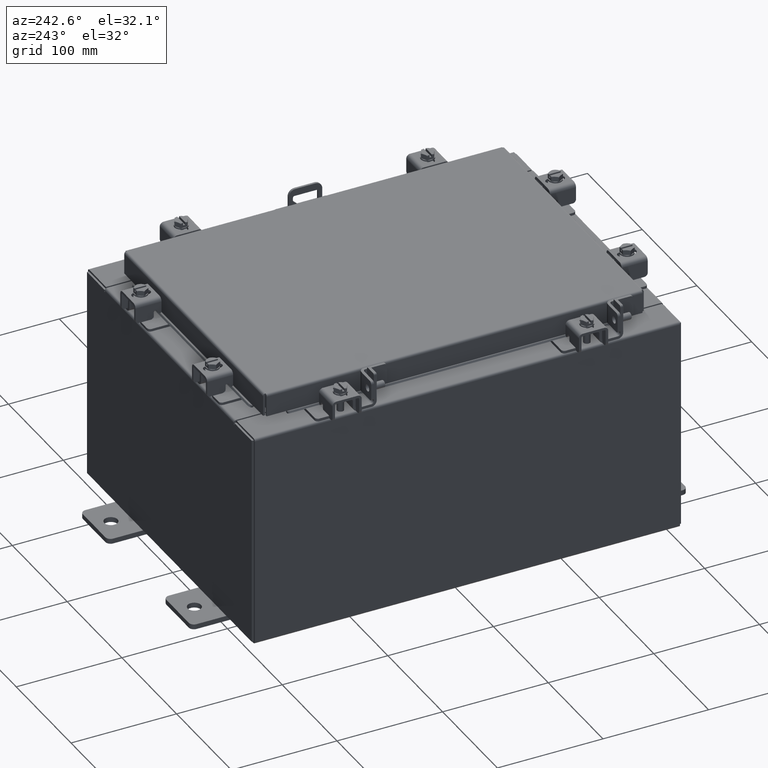
[diagram: clean part render]
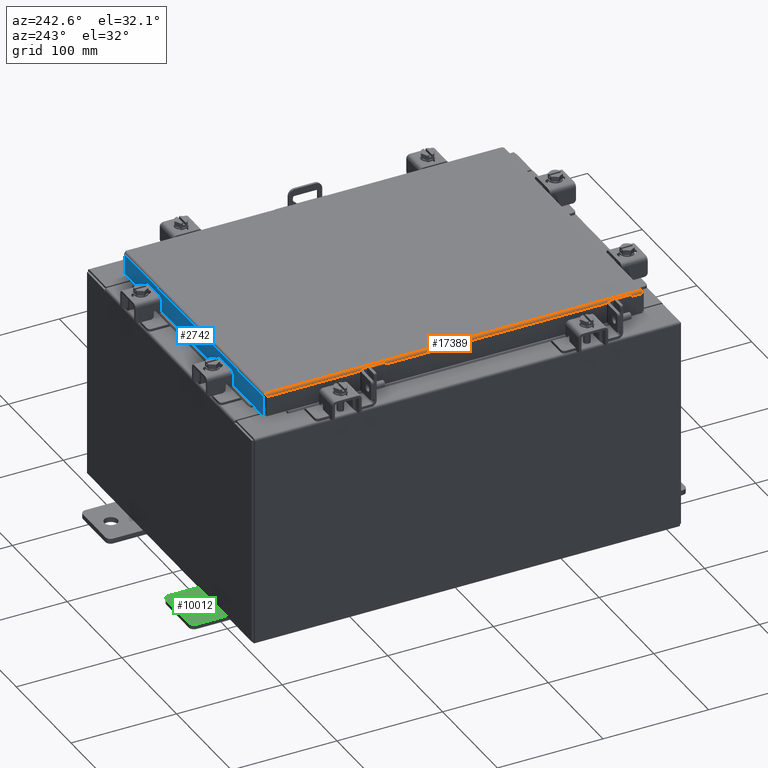
[diagram: same view with three faces highlighted in distinct colors, each labeled with its STEP entity id]
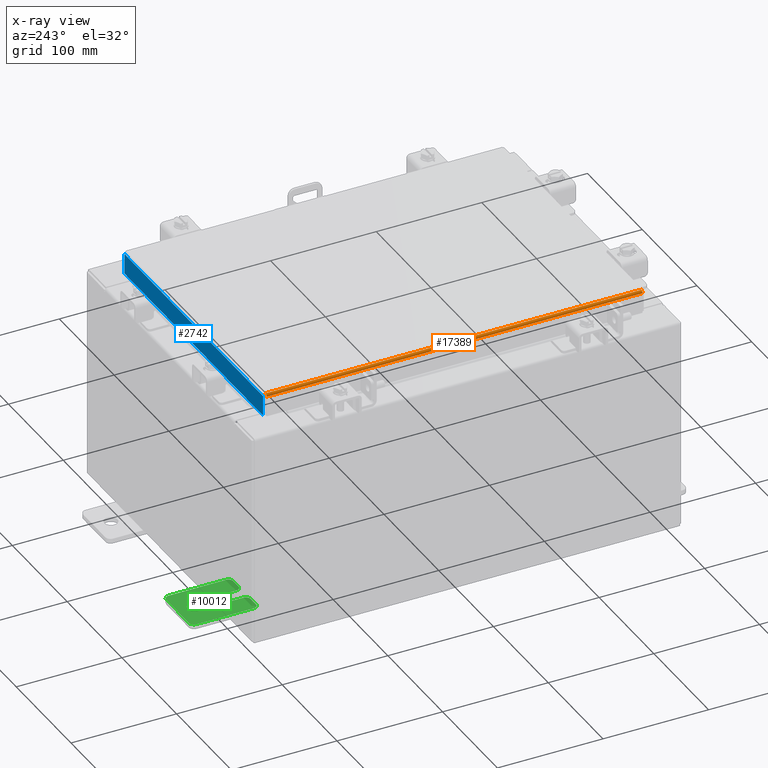
[diagram: x-ray of the same camera — body ghosted, the three highlighted faces saturated]
A machine part, auxiliary view with three faces highlighted in distinct colors.
The next image is the same camera in x-ray (body ghosted, the three faces saturated) — at least one of them is partly hidden behind the body in this view.
Their STEP definitions:

[orange] entity #17389 — the highlighted cylindrical surface (edge-blend (fillet) strip) has radius 2.2276 mm, axis along (0, 1, 0).
#159 = ORIENTED_EDGE ( 'NONE', *, *, #5849, .F. ) ;
#220 = VECTOR ( 'NONE', #12813, 39.37007874015748100 ) ;
#358 = CYLINDRICAL_SURFACE ( 'NONE', #10582, 0.08770000000000026400 ) ;
#823 = ORIENTED_EDGE ( 'NONE', *, *, #9444, .F. ) ;
#946 = EDGE_LOOP ( 'NONE', ( #2431, #823, #21982, #159 ) ) ;
#1432 = DIRECTION ( 'NONE',  ( -0.0000000000000000000, 1.000000000000000000, -0.0000000000000000000 ) ) ;
#1436 = CARTESIAN_POINT ( 'NONE',  ( -5.001779903154992500, -7.006204822031357100, -2.037881236484656600E-016 ) ) ;
#1495 = CARTESIAN_POINT ( 'NONE',  ( -5.013255289458311600, 7.006109644062711100, -0.002282596256188923000 ) ) ;
#2314 = CARTESIAN_POINT ( 'NONE',  ( -4.990300000000000400, -7.006300000000000400, -2.048885995248197400E-016 ) ) ;
#2431 = ORIENTED_EDGE ( 'NONE', *, *, #13356, .F. ) ;
#2940 = CARTESIAN_POINT ( 'NONE',  ( -4.990300000000000400, 7.006300000000000400, -2.048885995248197400E-016 ) ) ;
#3167 = CARTESIAN_POINT ( 'NONE',  ( -4.990300000000000400, 7.006300000000000400, -0.08770000000000030500 ) ) ;
#3177 = CARTESIAN_POINT ( 'NONE',  ( -5.034467384578528400, -7.005919288125420900, -0.01106893374133176100 ) ) ;
#3232 = CARTESIAN_POINT ( 'NONE',  ( -4.990300000000000400, 7.006300000000000400, -2.048885995248197400E-016 ) ) ;
#3460 = VECTOR ( 'NONE', #6015, 39.37007874015748100 ) ;
#4003 = LINE ( 'NONE', #14611, #3460 ) ;
#4632 = VERTEX_POINT ( 'NONE', #5739 ) ;
#4906 = CARTESIAN_POINT ( 'NONE',  ( -5.060430782078324100, -7.005633754219490000, -0.03380425265820009900 ) ) ;
#5456 = FACE_OUTER_BOUND ( 'NONE', #946, .T. ) ;
#5739 = CARTESIAN_POINT ( 'NONE',  ( -5.078000000000001200, -7.005157864376269700, -0.08770000000000007000 ) ) ;
#5841 = B_SPLINE_CURVE_WITH_KNOTS ( 'NONE', 3,
 ( #21831, #16811, #8336, #20178, #10046, #21910, #11750, #1495, #13494, #3232 ),
 .UNSPECIFIED., .F., .F.,
 ( 4, 2, 2, 2, 4 ),
 ( 0.0000000000000000000, 0.2500000000000000000, 0.5000000000000000000, 0.7500000000000000000, 1.000000000000000000 ),
 .UNSPECIFIED. ) ;
#5849 = EDGE_CURVE ( 'NONE', #10294, #4632, #11715, .T. ) ;
#6015 = DIRECTION ( 'NONE',  ( 0.0000000000000000000, -1.000000000000000000, 0.0000000000000000000 ) ) ;
#6623 = CARTESIAN_POINT ( 'NONE',  ( -5.075717403743813500, -7.005348220313559100, -0.06474471054169121700 ) ) ;
#8336 = CARTESIAN_POINT ( 'NONE',  ( -5.075717403743813500, 7.005348220313559100, -0.06474471054169121700 ) ) ;
#8348 = CARTESIAN_POINT ( 'NONE',  ( -5.078000000000001200, -7.005157864376269700, -0.08770000000000007000 ) ) ;
#9444 = EDGE_CURVE ( 'NONE', #10232, #10562, #5841, .T. ) ;
#10046 = CARTESIAN_POINT ( 'NONE',  ( -5.060430782078321400, 7.005633754219491700, -0.03380425265820009200 ) ) ;
#10232 = VERTEX_POINT ( 'NONE', #17624 ) ;
#10294 = VERTEX_POINT ( 'NONE', #2314 ) ;
#10393 = EDGE_CURVE ( 'NONE', #10232, #4632, #17842, .T. ) ;
#10562 = VERTEX_POINT ( 'NONE', #2940 ) ;
#10582 = AXIS2_PLACEMENT_3D ( 'NONE', #3167, #1432, #20182 ) ;
#11089 = CARTESIAN_POINT ( 'NONE',  ( -5.078000000000001200, -7.094000000000000300, -0.08770000000000007000 ) ) ;
#11715 = B_SPLINE_CURVE_WITH_KNOTS ( 'NONE', 3,
 ( #21846, #1436, #13426, #3177, #15154, #4906, #16827, #6623, #18524, #8348 ),
 .UNSPECIFIED., .F., .F.,
 ( 4, 2, 2, 2, 4 ),
 ( 0.0000000000000000000, 0.2500000000000000000, 0.5000000000000000000, 0.7500000000000000000, 1.000000000000000000 ),
 .UNSPECIFIED. ) ;
#11750 = CARTESIAN_POINT ( 'NONE',  ( -5.034467384578530200, 7.005919288125422600, -0.01106893374133176100 ) ) ;
#12813 = DIRECTION ( 'NONE',  ( 3.527974528565840600E-031, -1.000000000000000000, -9.616438660265784900E-046 ) ) ;
#13356 = EDGE_CURVE ( 'NONE', #10562, #10294, #4003, .T. ) ;
#13426 = CARTESIAN_POINT ( 'NONE',  ( -5.013255289458309800, -7.006109644062711100, -0.002282596256188923400 ) ) ;
#13494 = CARTESIAN_POINT ( 'NONE',  ( -5.001779903154994300, 7.006204822031357100, -2.038214714022946300E-016 ) ) ;
#14611 = CARTESIAN_POINT ( 'NONE',  ( -4.990300000000000400, 7.006300000000000400, -2.048885995248197400E-016 ) ) ;
#15154 = CARTESIAN_POINT ( 'NONE',  ( -5.044195747341800200, -7.005824110156779300, -0.01756921792167976500 ) ) ;
#16811 = CARTESIAN_POINT ( 'NONE',  ( -5.078000000000001200, 7.005253042344914900, -0.07622009684500735700 ) ) ;
#16827 = CARTESIAN_POINT ( 'NONE',  ( -5.066931066258668200, -7.005538576250847500, -0.04353261542147223600 ) ) ;
#17389 = ADVANCED_FACE ( 'NONE', ( #5456 ), #358, .T. ) ;
#17624 = CARTESIAN_POINT ( 'NONE',  ( -5.078000000000001200, 7.005157864376269700, -0.08770000000000007000 ) ) ;
#17842 = LINE ( 'NONE', #11089, #220 ) ;
#18524 = CARTESIAN_POINT ( 'NONE',  ( -5.078000000000001200, -7.005253042344914900, -0.07622009684500738500 ) ) ;
#20178 = CARTESIAN_POINT ( 'NONE',  ( -5.066931066258668200, 7.005538576250844900, -0.04353261542147222900 ) ) ;
#20182 = DIRECTION ( 'NONE',  ( -1.000000000000000000, 0.0000000000000000000, 2.725618009642215600E-015 ) ) ;
#21831 = CARTESIAN_POINT ( 'NONE',  ( -5.078000000000001200, 7.005157864376269700, -0.08770000000000007000 ) ) ;
#21846 = CARTESIAN_POINT ( 'NONE',  ( -4.990300000000000400, -7.006300000000000400, -2.048885995248197400E-016 ) ) ;
#21910 = CARTESIAN_POINT ( 'NONE',  ( -5.044195747341799300, 7.005824110156780200, -0.01756921792167976500 ) ) ;
#21982 = ORIENTED_EDGE ( 'NONE', *, *, #10393, .T. ) ;

[blue] entity #2742 — the highlighted planar face has unit normal (0, -1, -0).
#227 = CARTESIAN_POINT ( 'NONE',  ( 4.989157864376268000, 7.094000000000002100, -0.8499999999999996400 ) ) ;
#535 = CARTESIAN_POINT ( 'NONE',  ( -4.989157864376269700, 7.094000000000002100, -0.8500000000000008700 ) ) ;
#680 = VERTEX_POINT ( 'NONE', #4479 ) ;
#974 = EDGE_CURVE ( 'NONE', #9045, #19669, #5782, .T. ) ;
#1135 = FACE_OUTER_BOUND ( 'NONE', #18288, .T. ) ;
#2113 = CARTESIAN_POINT ( 'NONE',  ( -5.078000000000001200, 7.094000000000000300, -0.08770000000000007000 ) ) ;
#2742 = ADVANCED_FACE ( 'NONE', ( #1135 ), #20853, .F. ) ;
#2798 = CARTESIAN_POINT ( 'NONE',  ( -4.239157864376270600, 7.094000000000000300, -0.8500000000000014200 ) ) ;
#3099 = VERTEX_POINT ( 'NONE', #13124 ) ;
#3255 = ORIENTED_EDGE ( 'NONE', *, *, #16721, .F. ) ;
#3593 = LINE ( 'NONE', #16775, #7652 ) ;
#3872 = DIRECTION ( 'NONE',  ( -1.000000000000000000, -3.412110487939138600E-031, -9.300620212429610200E-046 ) ) ;
#4479 = CARTESIAN_POINT ( 'NONE',  ( -4.989157864376269700, 7.094000000000000300, -0.08770000000000007000 ) ) ;
#4514 = DIRECTION ( 'NONE',  ( 1.000000000000000000, -0.0000000000000000000, -0.0000000000000000000 ) ) ;
#5782 = LINE ( 'NONE', #18089, #14342 ) ;
#6449 = CARTESIAN_POINT ( 'NONE',  ( -4.989157864376269700, 7.094000000000000300, -0.07469999999999978000 ) ) ;
#6457 = ORIENTED_EDGE ( 'NONE', *, *, #18560, .F. ) ;
#6600 = LINE ( 'NONE', #2113, #15168 ) ;
#7652 = VECTOR ( 'NONE', #20148, 39.37007874015748100 ) ;
#7923 = DIRECTION ( 'NONE',  ( 0.0000000000000000000, 2.818880942772355800E-015, -1.000000000000000000 ) ) ;
#8176 = DIRECTION ( 'NONE',  ( -0.0000000000000000000, 2.818880942772355800E-015, -1.000000000000000000 ) ) ;
#8593 = CARTESIAN_POINT ( 'NONE',  ( 4.989157864376268000, 7.094000000000000300, 2.025795506403867700E-014 ) ) ;
#8605 = CARTESIAN_POINT ( 'NONE',  ( -4.239157864376270600, 7.094000000000000300, -0.8500000000000014200 ) ) ;
#8912 = CARTESIAN_POINT ( 'NONE',  ( 4.239157864376268000, 7.094000000000000300, -0.8500000000000014200 ) ) ;
#9045 = VERTEX_POINT ( 'NONE', #535 ) ;
#9289 = VECTOR ( 'NONE', #8176, 39.37007874015748100 ) ;
#10953 = ORIENTED_EDGE ( 'NONE', *, *, #11592, .F. ) ;
#11592 = EDGE_CURVE ( 'NONE', #3099, #680, #6600, .T. ) ;
#11956 = DIRECTION ( 'NONE',  ( 0.0000000000000000000, 2.818880942772355800E-015, -1.000000000000000000 ) ) ;
#12724 = VECTOR ( 'NONE', #11956, 39.37007874015748100 ) ;
#12909 = VECTOR ( 'NONE', #4514, 39.37007874015748100 ) ;
#13124 = CARTESIAN_POINT ( 'NONE',  ( 4.989157864376268000, 7.094000000000000300, -0.08770000000000007000 ) ) ;
#13194 = VERTEX_POINT ( 'NONE', #8912 ) ;
#13407 = ORIENTED_EDGE ( 'NONE', *, *, #974, .F. ) ;
#13842 = LINE ( 'NONE', #6449, #9289 ) ;
#14342 = VECTOR ( 'NONE', #20320, 39.37007874015748100 ) ;
#15052 = EDGE_CURVE ( 'NONE', #680, #9045, #13842, .T. ) ;
#15168 = VECTOR ( 'NONE', #3872, 39.37007874015748100 ) ;
#16180 = EDGE_CURVE ( 'NONE', #3099, #21648, #21185, .T. ) ;
#16721 = EDGE_CURVE ( 'NONE', #13194, #21648, #3593, .T. ) ;
#16775 = CARTESIAN_POINT ( 'NONE',  ( -5.078000000000001200, 7.094000000000002100, -0.8500000000000008700 ) ) ;
#16880 = LINE ( 'NONE', #2798, #12909 ) ;
#18050 = ORIENTED_EDGE ( 'NONE', *, *, #16180, .T. ) ;
#18089 = CARTESIAN_POINT ( 'NONE',  ( -5.078000000000001200, 7.094000000000002100, -0.8500000000000008700 ) ) ;
#18288 = EDGE_LOOP ( 'NONE', ( #10953, #18050, #3255, #6457, #13407, #18572 ) ) ;
#18560 = EDGE_CURVE ( 'NONE', #19669, #13194, #16880, .T. ) ;
#18572 = ORIENTED_EDGE ( 'NONE', *, *, #15052, .F. ) ;
#19669 = VERTEX_POINT ( 'NONE', #8605 ) ;
#20148 = DIRECTION ( 'NONE',  ( 1.000000000000000000, 4.379057701015054300E-047, 1.210448599004448700E-016 ) ) ;
#20320 = DIRECTION ( 'NONE',  ( 1.000000000000000000, 4.379057701015054300E-047, 1.210448599004448700E-016 ) ) ;
#20474 = AXIS2_PLACEMENT_3D ( 'NONE', #21418, #21837, #7923 ) ;
#20853 = PLANE ( 'NONE',  #20474 ) ;
#21185 = LINE ( 'NONE', #8593, #12724 ) ;
#21418 = CARTESIAN_POINT ( 'NONE',  ( -2.420551180144024700E-030, 7.094000000000000300, 2.025795506403867700E-014 ) ) ;
#21648 = VERTEX_POINT ( 'NONE', #227 ) ;
#21837 = DIRECTION ( 'NONE',  ( 3.412110487939137700E-031, -1.000000000000000000, -2.818880942772355800E-015 ) ) ;

[green] entity #10012 — the highlighted planar face has unit normal (0, 0, 1).
#96 = CARTESIAN_POINT ( 'NONE',  ( 0.0000000000000000000, 1.249999999999994700, -0.8100000000000092700 ) ) ;
#211 = LINE ( 'NONE', #14315, #8773 ) ;
#338 = CARTESIAN_POINT ( 'NONE',  ( 4.780733988912460100E-016, -0.6249999999999993300, 5.858939755051854500E-017 ) ) ;
#424 = VECTOR ( 'NONE', #14277, 39.37007874015748100 ) ;
#898 = AXIS2_PLACEMENT_3D ( 'NONE', #20057, #9910, #21784 ) ;
#914 = LINE ( 'NONE', #7016, #8948 ) ;
#1023 = AXIS2_PLACEMENT_3D ( 'NONE', #19361, #9196, #21054 ) ;
#1207 = ORIENTED_EDGE ( 'NONE', *, *, #12539, .F. ) ;
#1313 = CARTESIAN_POINT ( 'NONE',  ( 0.0000000000000000000, 0.0000000000000000000, 0.0000000000000000000 ) ) ;
#1579 = DIRECTION ( 'NONE',  ( 0.0000000000000000000, 0.0000000000000000000, -1.000000000000000000 ) ) ;
#1916 = CARTESIAN_POINT ( 'NONE',  ( 0.0000000000000000000, -1.060000000000001600, 0.8099999999999978300 ) ) ;
#2024 = DIRECTION ( 'NONE',  ( -6.523827964459551700E-016, -1.000000000000000000, 0.0000000000000000000 ) ) ;
#2482 = CIRCLE ( 'NONE', #1023, 0.2499999999999999200 ) ;
#2535 = DIRECTION ( 'NONE',  ( 1.000000000000000000, 0.0000000000000000000, -0.0000000000000000000 ) ) ;
#2652 = FACE_OUTER_BOUND ( 'NONE', #4599, .T. ) ;
#2741 = LINE ( 'NONE', #20031, #10201 ) ;
#2759 = CARTESIAN_POINT ( 'NONE',  ( 4.168508244714285900E-016, 0.6249999999999992200, 0.2499999999999999200 ) ) ;
#3066 = PLANE ( 'NONE',  #12948 ) ;
#3183 = FACE_BOUND ( 'NONE', #17292, .T. ) ;
#3670 = DIRECTION ( 'NONE',  ( 0.0000000000000000000, 0.0000000000000000000, -1.000000000000000000 ) ) ;
#3766 = CIRCLE ( 'NONE', #20889, 0.2499999999999999200 ) ;
#4597 = ORIENTED_EDGE ( 'NONE', *, *, #11661, .T. ) ;
#4599 = EDGE_LOOP ( 'NONE', ( #17150, #16356, #4597, #14379, #7106, #6988, #12695, #19990, #11675, #19880, #11910, #8048, #11650, #14532 ) ) ;
#4759 = EDGE_CURVE ( 'NONE', #20566, #5427, #18431, .T. ) ;
#4785 = DIRECTION ( 'NONE',  ( -0.0000000000000000000, 0.0000000000000000000, -1.000000000000000000 ) ) ;
#5027 = LINE ( 'NONE', #13127, #13600 ) ;
#5211 = VERTEX_POINT ( 'NONE', #11237 ) ;
#5427 = VERTEX_POINT ( 'NONE', #96 ) ;
#5833 = LINE ( 'NONE', #16037, #18846 ) ;
#6170 = AXIS2_PLACEMENT_3D ( 'NONE', #22016, #11865, #1579 ) ;
#6173 = CARTESIAN_POINT ( 'NONE',  ( 0.0000000000000000000, -1.250000000000004700, -0.4400000000000002200 ) ) ;
#6210 = EDGE_CURVE ( 'NONE', #20812, #7498, #6924, .T. ) ;
#6624 = EDGE_CURVE ( 'NONE', #8455, #8976, #5027, .T. ) ;
#6893 = CIRCLE ( 'NONE', #13239, 0.1900000000000011100 ) ;
#6924 = CIRCLE ( 'NONE', #7794, 0.1900000000000011400 ) ;
#6988 = ORIENTED_EDGE ( 'NONE', *, *, #8910, .T. ) ;
#7001 = CARTESIAN_POINT ( 'NONE',  ( 0.0000000000000000000, -1.250000000000005600, -1.000000000000006200 ) ) ;
#7016 = CARTESIAN_POINT ( 'NONE',  ( 6.829619984160658000E-017, -1.250000000000003800, 0.2500000000000005000 ) ) ;
#7028 = VERTEX_POINT ( 'NONE', #11574 ) ;
#7106 = ORIENTED_EDGE ( 'NONE', *, *, #16912, .T. ) ;
#7284 = VERTEX_POINT ( 'NONE', #18896 ) ;
#7382 = CARTESIAN_POINT ( 'NONE',  ( 4.039428427013647300E-016, 0.6249999999999992200, -9.783840404509077400E-018 ) ) ;
#7498 = VERTEX_POINT ( 'NONE', #14350 ) ;
#7519 = EDGE_CURVE ( 'NONE', #14755, #7028, #5833, .T. ) ;
#7686 = VERTEX_POINT ( 'NONE', #11261 ) ;
#7794 = AXIS2_PLACEMENT_3D ( 'NONE', #18492, #8311, #20161 ) ;
#8008 = AXIS2_PLACEMENT_3D ( 'NONE', #20163, #10027, #21893 ) ;
#8048 = ORIENTED_EDGE ( 'NONE', *, *, #4759, .T. ) ;
#8266 = VERTEX_POINT ( 'NONE', #11241 ) ;
#8311 = DIRECTION ( 'NONE',  ( 1.000000000000000000, 0.0000000000000000000, -0.0000000000000000000 ) ) ;
#8455 = VERTEX_POINT ( 'NONE', #15134 ) ;
#8550 = CIRCLE ( 'NONE', #18057, 0.2499999999999999200 ) ;
#8729 = DIRECTION ( 'NONE',  ( 6.556435184794182400E-016, 1.000000000000000000, 0.0000000000000000000 ) ) ;
#8773 = VECTOR ( 'NONE', #16008, 39.37007874015748100 ) ;
#8910 = EDGE_CURVE ( 'NONE', #7686, #8455, #8550, .T. ) ;
#8948 = VECTOR ( 'NONE', #8729, 39.37007874015748100 ) ;
#8976 = VERTEX_POINT ( 'NONE', #19031 ) ;
#9000 = CARTESIAN_POINT ( 'NONE',  ( 0.0000000000000000000, -1.060000000000004500, -1.000000000000006400 ) ) ;
#9072 = DIRECTION ( 'NONE',  ( -5.163192708025533800E-017, 0.0000000000000000000, -1.000000000000000000 ) ) ;
#9135 = CIRCLE ( 'NONE', #898, 0.1900000000000011100 ) ;
#9196 = DIRECTION ( 'NONE',  ( 1.000000000000000000, -0.0000000000000000000, -5.163192708025532000E-017 ) ) ;
#9810 = CIRCLE ( 'NONE', #17841, 0.1900000000000011100 ) ;
#9910 = DIRECTION ( 'NONE',  ( 1.000000000000000000, 0.0000000000000000000, -0.0000000000000000000 ) ) ;
#10012 = ADVANCED_FACE ( 'NONE', ( #3183, #2652 ), #3066, .T. ) ;
#10027 = DIRECTION ( 'NONE',  ( 1.000000000000000000, 0.0000000000000000000, -0.0000000000000000000 ) ) ;
#10074 = LINE ( 'NONE', #12534, #424 ) ;
#10160 = ORIENTED_EDGE ( 'NONE', *, *, #19859, .F. ) ;
#10201 = VECTOR ( 'NONE', #13326, 39.37007874015748100 ) ;
#10410 = DIRECTION ( 'NONE',  ( 0.0000000000000000000, 1.000000000000000000, -1.639108796198558100E-015 ) ) ;
#10440 = LINE ( 'NONE', #7001, #14499 ) ;
#10749 = EDGE_CURVE ( 'NONE', #7028, #7284, #6893, .T. ) ;
#11237 = CARTESIAN_POINT ( 'NONE',  ( 0.0000000000000000000, 1.249999999999997300, 0.8099999999999935000 ) ) ;
#11241 = CARTESIAN_POINT ( 'NONE',  ( 3.910348609313009100E-016, 0.6249999999999992200, -0.2499999999999999200 ) ) ;
#11261 = CARTESIAN_POINT ( 'NONE',  ( 0.0000000000000000000, -0.6249999999999992200, 0.2500000000000005000 ) ) ;
#11574 = CARTESIAN_POINT ( 'NONE',  ( 0.0000000000000000000, -1.060000000000001200, 0.9999999999999988900 ) ) ;
#11650 = ORIENTED_EDGE ( 'NONE', *, *, #14583, .T. ) ;
#11661 = EDGE_CURVE ( 'NONE', #7284, #20812, #10074, .T. ) ;
#11675 = ORIENTED_EDGE ( 'NONE', *, *, #18642, .T. ) ;
#11865 = DIRECTION ( 'NONE',  ( 1.000000000000000000, 0.0000000000000000000, -0.0000000000000000000 ) ) ;
#11910 = ORIENTED_EDGE ( 'NONE', *, *, #12383, .T. ) ;
#12291 = DIRECTION ( 'NONE',  ( -1.000000000000000000, 6.523827964459549700E-016, 5.163192708025532000E-017 ) ) ;
#12383 = EDGE_CURVE ( 'NONE', #21097, #20566, #10440, .T. ) ;
#12534 = CARTESIAN_POINT ( 'NONE',  ( 0.0000000000000000000, -1.250000000000002200, 0.9999999999999992200 ) ) ;
#12539 = EDGE_CURVE ( 'NONE', #17893, #8266, #3766, .T. ) ;
#12695 = ORIENTED_EDGE ( 'NONE', *, *, #6624, .T. ) ;
#12787 = CARTESIAN_POINT ( 'NONE',  ( 0.0000000000000000000, 1.059999999999996300, 0.8099999999999938400 ) ) ;
#12948 = AXIS2_PLACEMENT_3D ( 'NONE', #1313, #14972, #4785 ) ;
#13037 = CARTESIAN_POINT ( 'NONE',  ( 0.0000000000000000000, 1.059999999999996500, 0.9999999999999953400 ) ) ;
#13127 = CARTESIAN_POINT ( 'NONE',  ( 4.780733988912460100E-016, -0.6249999999999993300, -0.2499999999999993900 ) ) ;
#13239 = AXIS2_PLACEMENT_3D ( 'NONE', #1916, #13925, #3670 ) ;
#13326 = DIRECTION ( 'NONE',  ( 0.0000000000000000000, -1.639108796198553600E-015, -1.000000000000000000 ) ) ;
#13600 = VECTOR ( 'NONE', #14871, 39.37007874015748100 ) ;
#13925 = DIRECTION ( 'NONE',  ( 1.000000000000000000, 0.0000000000000000000, -0.0000000000000000000 ) ) ;
#14277 = DIRECTION ( 'NONE',  ( 0.0000000000000000000, -1.639108796198553600E-015, -1.000000000000000000 ) ) ;
#14315 = CARTESIAN_POINT ( 'NONE',  ( 0.0000000000000000000, 1.249999999999994200, -1.000000000000010400 ) ) ;
#14350 = CARTESIAN_POINT ( 'NONE',  ( 1.928684683526972300E-016, -1.060000000000002100, 0.2500000000000005000 ) ) ;
#14379 = ORIENTED_EDGE ( 'NONE', *, *, #6210, .T. ) ;
#14499 = VECTOR ( 'NONE', #10410, 39.37007874015748100 ) ;
#14526 = DIRECTION ( 'NONE',  ( 0.0000000000000000000, 0.0000000000000000000, -1.000000000000000000 ) ) ;
#14532 = ORIENTED_EDGE ( 'NONE', *, *, #15488, .T. ) ;
#14583 = EDGE_CURVE ( 'NONE', #5427, #5211, #211, .T. ) ;
#14755 = VERTEX_POINT ( 'NONE', #13037 ) ;
#14871 = DIRECTION ( 'NONE',  ( -6.556435184794182400E-016, -1.000000000000000000, -1.639108796198545600E-016 ) ) ;
#14972 = DIRECTION ( 'NONE',  ( 1.000000000000000000, 0.0000000000000000000, -0.0000000000000000000 ) ) ;
#15083 = EDGE_CURVE ( 'NONE', #18784, #21097, #17813, .T. ) ;
#15134 = CARTESIAN_POINT ( 'NONE',  ( 4.780733988912460100E-016, -0.6249999999999993300, -0.2499999999999998600 ) ) ;
#15488 = EDGE_CURVE ( 'NONE', #5211, #14755, #9810, .T. ) ;
#15642 = CARTESIAN_POINT ( 'NONE',  ( 0.0000000000000000000, -1.250000000000005300, -0.8100000000000047200 ) ) ;
#16008 = DIRECTION ( 'NONE',  ( 0.0000000000000000000, 1.639108796198553600E-015, 1.000000000000000000 ) ) ;
#16037 = CARTESIAN_POINT ( 'NONE',  ( 0.0000000000000000000, 1.249999999999997600, 0.9999999999999951200 ) ) ;
#16356 = ORIENTED_EDGE ( 'NONE', *, *, #10749, .T. ) ;
#16912 = EDGE_CURVE ( 'NONE', #7498, #7686, #914, .T. ) ;
#17150 = ORIENTED_EDGE ( 'NONE', *, *, #7519, .T. ) ;
#17292 = EDGE_LOOP ( 'NONE', ( #10160, #1207 ) ) ;
#17737 = DIRECTION ( 'NONE',  ( 0.0000000000000000000, -1.000000000000000000, 1.639108796198558100E-015 ) ) ;
#17813 = CIRCLE ( 'NONE', #8008, 0.1900000000000011100 ) ;
#17841 = AXIS2_PLACEMENT_3D ( 'NONE', #12787, #2535, #14526 ) ;
#17893 = VERTEX_POINT ( 'NONE', #2759 ) ;
#18057 = AXIS2_PLACEMENT_3D ( 'NONE', #338, #12291, #2024 ) ;
#18431 = CIRCLE ( 'NONE', #6170, 0.1900000000000011100 ) ;
#18492 = CARTESIAN_POINT ( 'NONE',  ( 0.0000000000000000000, -1.060000000000002100, 0.4400000000000016700 ) ) ;
#18549 = VERTEX_POINT ( 'NONE', #6173 ) ;
#18642 = EDGE_CURVE ( 'NONE', #18549, #18784, #2741, .T. ) ;
#18784 = VERTEX_POINT ( 'NONE', #15642 ) ;
#18846 = VECTOR ( 'NONE', #17737, 39.37007874015748100 ) ;
#18896 = CARTESIAN_POINT ( 'NONE',  ( 0.0000000000000000000, -1.250000000000002400, 0.8099999999999980500 ) ) ;
#19031 = CARTESIAN_POINT ( 'NONE',  ( 1.928684683526964400E-016, -1.060000000000003400, -0.2499999999999994400 ) ) ;
#19237 = DIRECTION ( 'NONE',  ( 1.000000000000000000, -0.0000000000000000000, -5.163192708025532000E-017 ) ) ;
#19361 = CARTESIAN_POINT ( 'NONE',  ( 4.039428427013647300E-016, 0.6249999999999992200, -9.783840404509077400E-018 ) ) ;
#19859 = EDGE_CURVE ( 'NONE', #8266, #17893, #2482, .T. ) ;
#19880 = ORIENTED_EDGE ( 'NONE', *, *, #15083, .T. ) ;
#19990 = ORIENTED_EDGE ( 'NONE', *, *, #20687, .T. ) ;
#20031 = CARTESIAN_POINT ( 'NONE',  ( 0.0000000000000000000, -1.250000000000002200, 0.9999999999999992200 ) ) ;
#20057 = CARTESIAN_POINT ( 'NONE',  ( 0.0000000000000000000, -1.060000000000003400, -0.4400000000000005000 ) ) ;
#20161 = DIRECTION ( 'NONE',  ( 0.0000000000000000000, 0.0000000000000000000, -1.000000000000000000 ) ) ;
#20163 = CARTESIAN_POINT ( 'NONE',  ( 0.0000000000000000000, -1.060000000000004100, -0.8100000000000050500 ) ) ;
#20566 = VERTEX_POINT ( 'NONE', #21429 ) ;
#20687 = EDGE_CURVE ( 'NONE', #8976, #18549, #9135, .T. ) ;
#20812 = VERTEX_POINT ( 'NONE', #21928 ) ;
#20889 = AXIS2_PLACEMENT_3D ( 'NONE', #7382, #19237, #9072 ) ;
#21054 = DIRECTION ( 'NONE',  ( -5.163192708025533800E-017, 0.0000000000000000000, -1.000000000000000000 ) ) ;
#21097 = VERTEX_POINT ( 'NONE', #9000 ) ;
#21429 = CARTESIAN_POINT ( 'NONE',  ( 0.0000000000000000000, 1.059999999999993400, -1.000000000000010000 ) ) ;
#21784 = DIRECTION ( 'NONE',  ( 0.0000000000000000000, 0.0000000000000000000, -1.000000000000000000 ) ) ;
#21893 = DIRECTION ( 'NONE',  ( 0.0000000000000000000, 0.0000000000000000000, -1.000000000000000000 ) ) ;
#21928 = CARTESIAN_POINT ( 'NONE',  ( 0.0000000000000000000, -1.250000000000003100, 0.4400000000000020000 ) ) ;
#22016 = CARTESIAN_POINT ( 'NONE',  ( 0.0000000000000000000, 1.059999999999993600, -0.8100000000000089400 ) ) ;